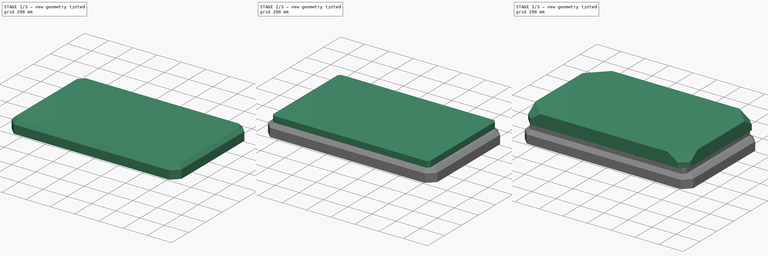
[diagram: build sequence overview — one tinted view per stage of 3, left to right]
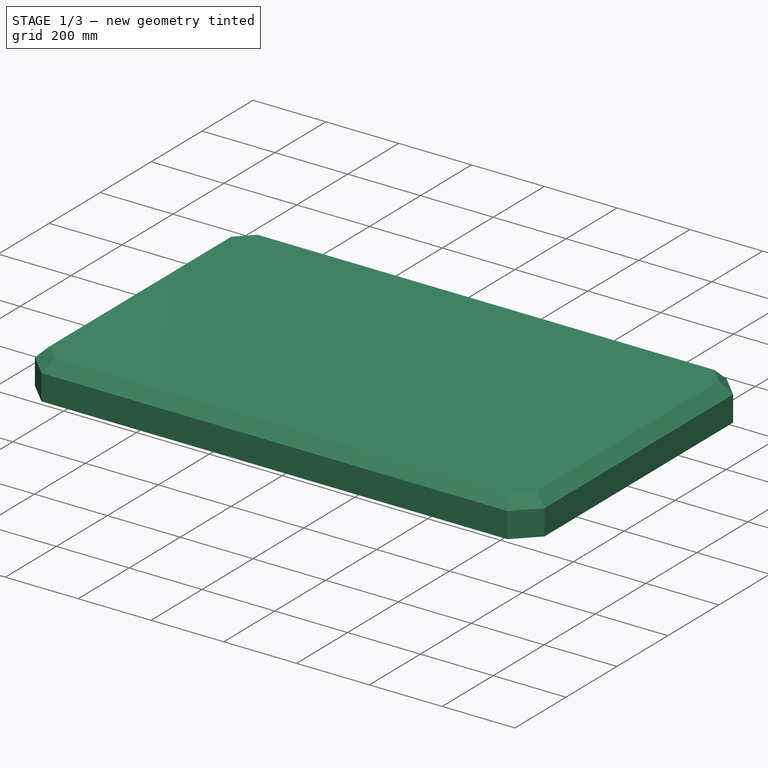
[diagram: stage 1 of 3 — iso view after this stage's code; geometry added in this stage tinted green]
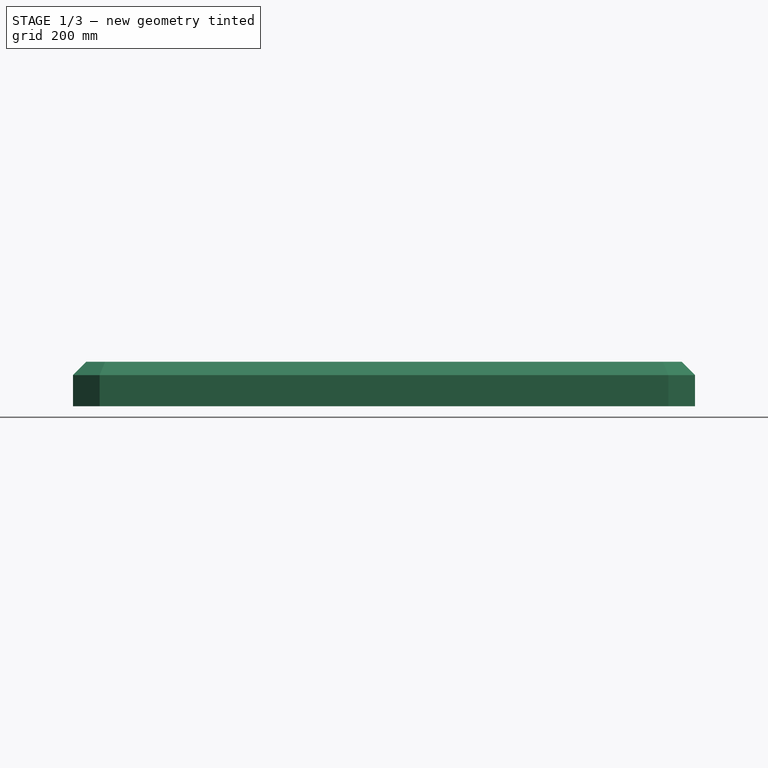
[diagram: stage 1 of 3 — front view after this stage's code; geometry added in this stage tinted green]
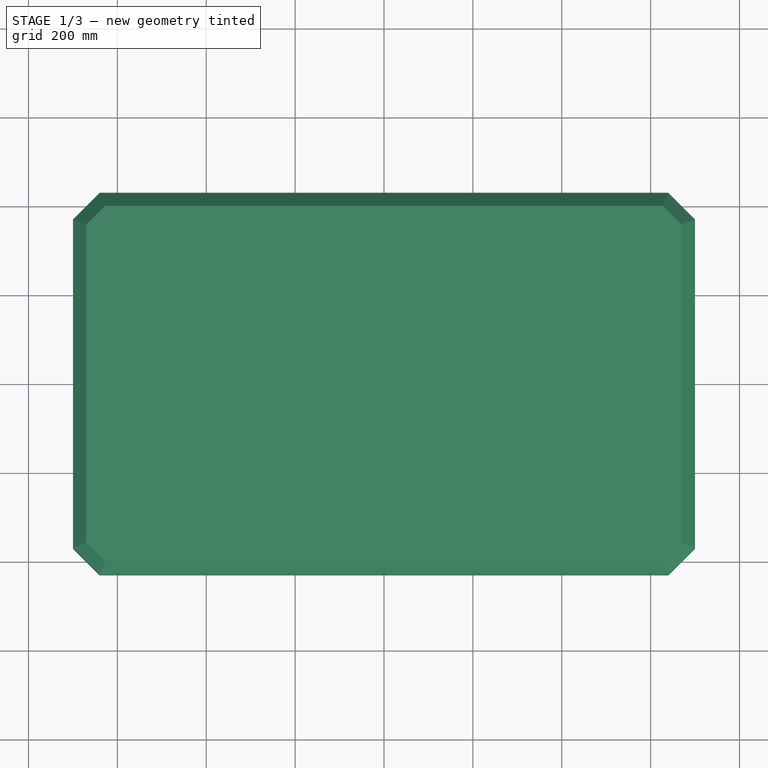
[diagram: stage 1 of 3 — top view after this stage's code; geometry added in this stage tinted green]
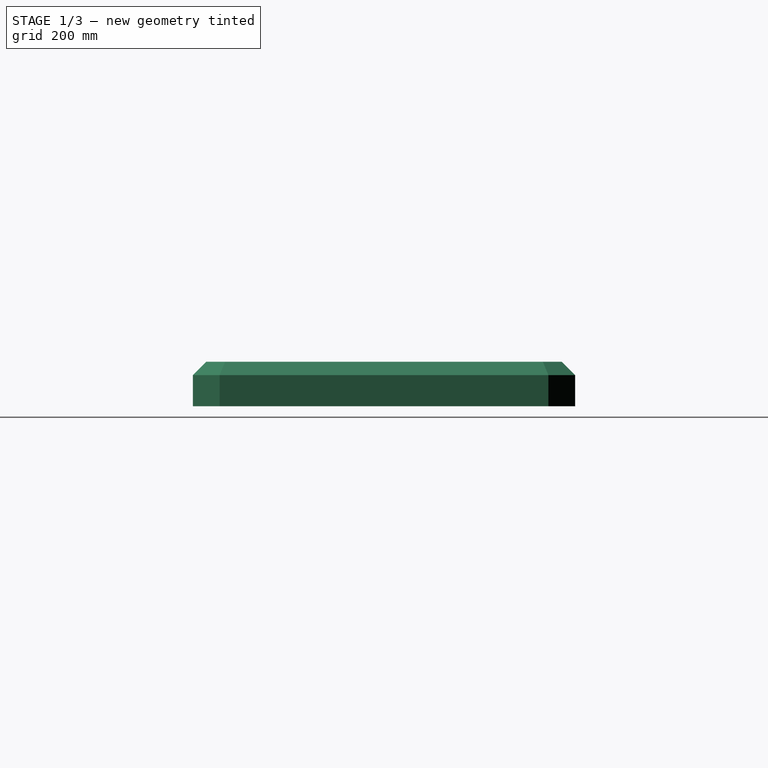
[diagram: stage 1 of 3 — right view after this stage's code; geometry added in this stage tinted green]
FCSTD DOCUMENT  (FreeCAD 0.19R)
Label: AMR_GP400
License: All rights reserved
LicenseURL: http://en.wikipedia.org/wiki/All_rights_reserved
objects: PartDesign::Chamfer×5, Sketcher::SketchObject×3, PartDesign::Pad×3, PartDesign::Body×1
note: 20 computed .brp shape members not serialized (recipe doc carries the construction recipe); baked Part::Feature solids carry a one-line shape summary decoded from their .brp

FEATURE [Sketcher::SketchObject] Sketch
  FullyConstrained = true
  MapMode = 5
  Support = -> [XY_Plane]
  sketch-geometry (4):
    g0: LineSegment StartX=-700 StartY=430 StartZ=0 EndX=700 EndY=430 EndZ=0
    g1: LineSegment StartX=700 StartY=430 StartZ=0 EndX=700 EndY=-430 EndZ=0
    g2: LineSegment StartX=700 StartY=-430 StartZ=0 EndX=-700 EndY=-430 EndZ=0
    g3: LineSegment StartX=-700 StartY=-430 StartZ=0 EndX=-700 EndY=430 EndZ=0
  constraints (11):
    c: Coincident(g0,g1)
    c: Coincident(g1,g2)
    c: Coincident(g2,g3)
    c: Coincident(g3,g0)
    c: Horizontal(g0)
    c: Horizontal(g2)
    c: Vertical(g1)
    c: Vertical(g3)
    c: Symmetric(g0,g1,g-1)
    c: DistanceX(g0,g0) = 1400
    c: DistanceY(g2,g0) = 860
FEATURE [PartDesign::Pad] Pad
  Direction = (1,1,1)
  Length = 100
  Length2 = 100
  Profile = -> Sketch
  Type = 0
FEATURE [PartDesign::Chamfer] Chamfer
  Angle = 45
  Base = -> Pad [Edge1,Edge2,Edge8,Edge5]
  BaseFeature = -> Pad
  ChamferType = 0
  FlipDirection = false
  Size = 60
  Size2 = 1
  SupportTransform = false
FEATURE [PartDesign::Chamfer] Chamfer001
  Angle = 45
  Base = -> Chamfer [Edge16,Edge13,Edge4,Edge18,Edge20,Edge19,Edge17,Edge15]
  BaseFeature = -> Chamfer
  ChamferType = 0
  FlipDirection = false
  Size = 30
  Size2 = 1
  SupportTransform = false
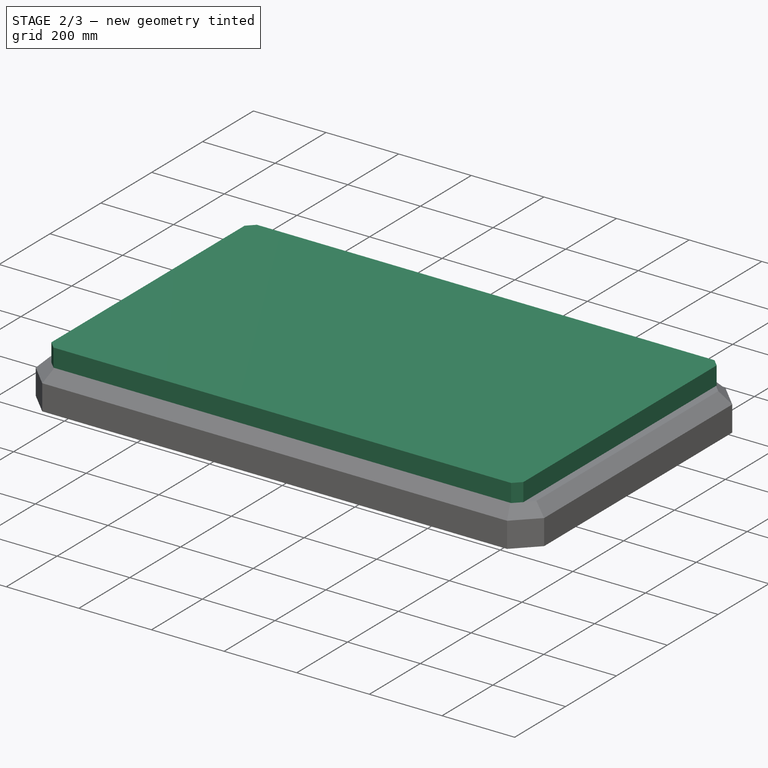
[diagram: stage 2 of 3 — iso view after this stage's code; geometry added in this stage tinted green]
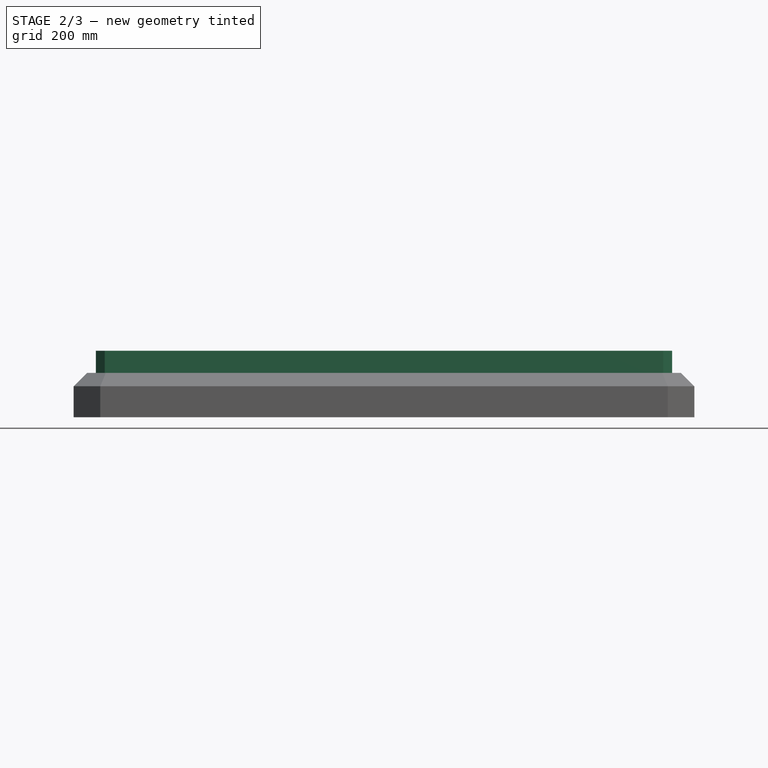
[diagram: stage 2 of 3 — front view after this stage's code; geometry added in this stage tinted green]
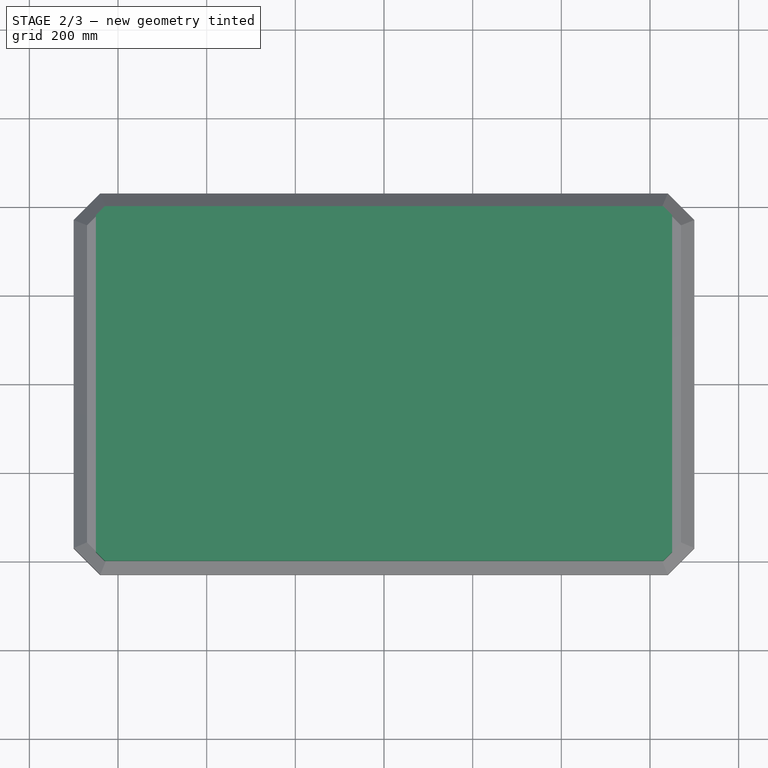
[diagram: stage 2 of 3 — top view after this stage's code; geometry added in this stage tinted green]
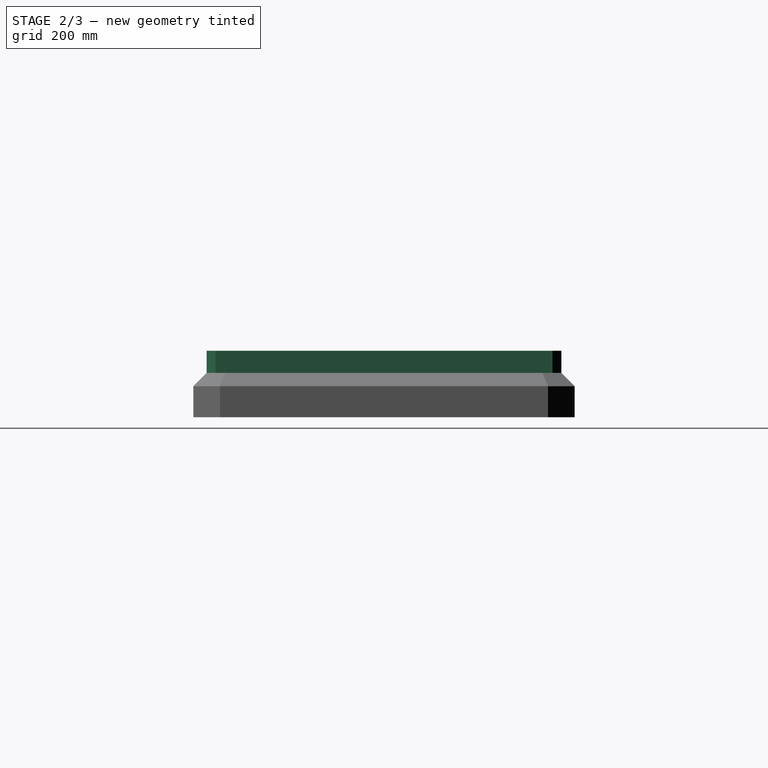
[diagram: stage 2 of 3 — right view after this stage's code; geometry added in this stage tinted green]
FEATURE [Sketcher::SketchObject] Sketch001
  FullyConstrained = true
  MapMode = 5
  Placement = pos=(0,0,100) rot=(0,0,1;0rad)
  Support = -> [Chamfer001]
  sketch-geometry (4):
    g0: LineSegment StartX=-650 StartY=400 StartZ=0 EndX=650 EndY=400 EndZ=0
    g1: LineSegment StartX=650 StartY=400 StartZ=0 EndX=650 EndY=-400 EndZ=0
    g2: LineSegment StartX=650 StartY=-400 StartZ=0 EndX=-650 EndY=-400 EndZ=0
    g3: LineSegment StartX=-650 StartY=-400 StartZ=0 EndX=-650 EndY=400 EndZ=0
  constraints (11):
    c: Coincident(g0,g1)
    c: Coincident(g1,g2)
    c: Coincident(g2,g3)
    c: Coincident(g3,g0)
    c: Horizontal(g0)
    c: Horizontal(g2)
    c: Vertical(g1)
    c: Vertical(g3)
    c: Symmetric(g0,g1,g-1)
    c: DistanceX(g0,g0) = 1300
    c: DistanceY(g2,g0) = 800
FEATURE [PartDesign::Pad] Pad001
  BaseFeature = -> Chamfer001
  Direction = (1,1,1)
  Length = 50
  Length2 = 100
  Profile = -> Sketch001
  Type = 0
FEATURE [PartDesign::Chamfer] Chamfer002
  Angle = 45
  Base = -> Pad001 [Edge25,Edge47,Edge24,Edge44]
  BaseFeature = -> Pad001
  ChamferType = 0
  FlipDirection = false
  Size = 20
  Size2 = 1
  SupportTransform = false
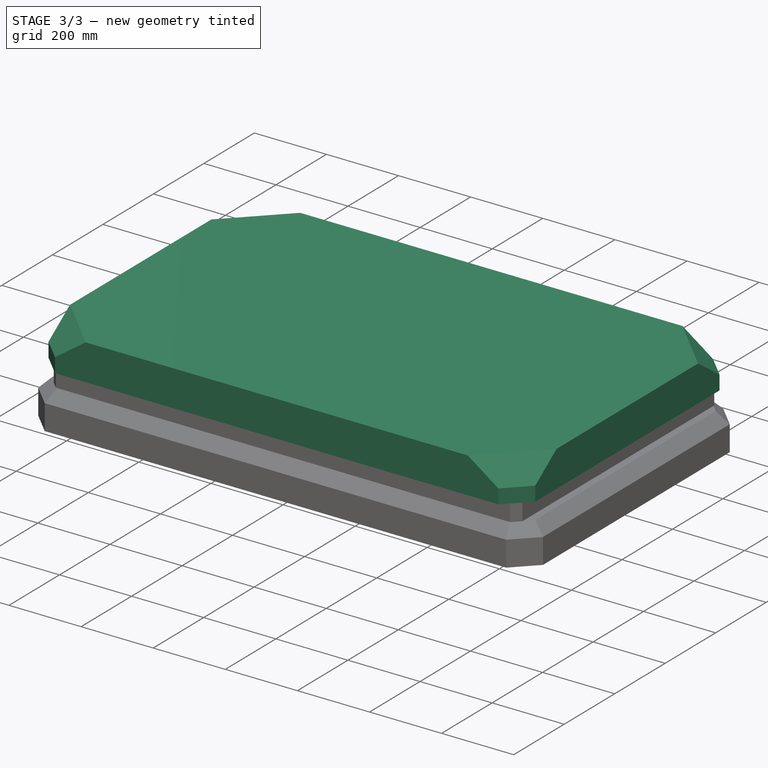
[diagram: stage 3 of 3 — iso view after this stage's code; geometry added in this stage tinted green]
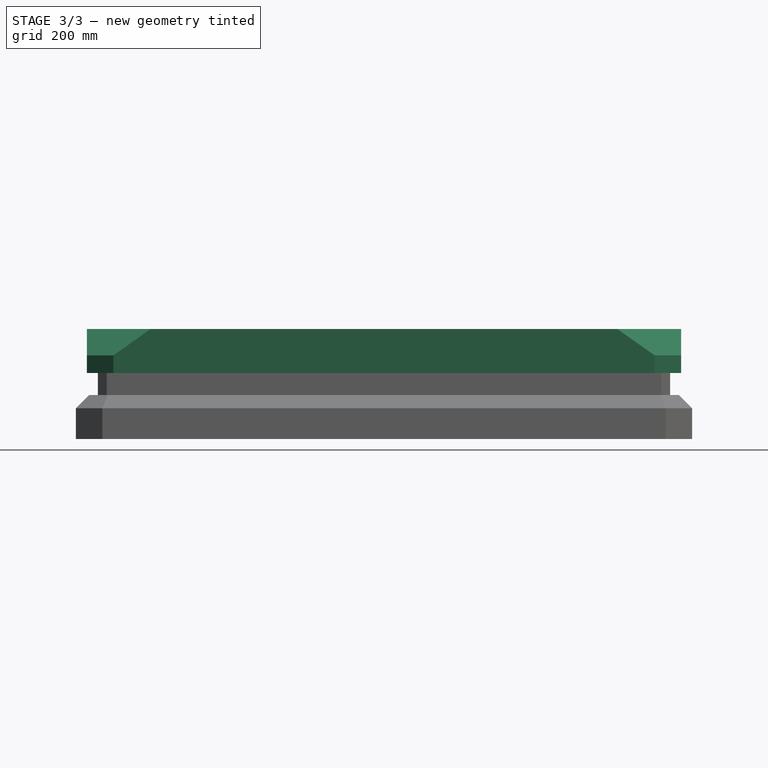
[diagram: stage 3 of 3 — front view after this stage's code; geometry added in this stage tinted green]
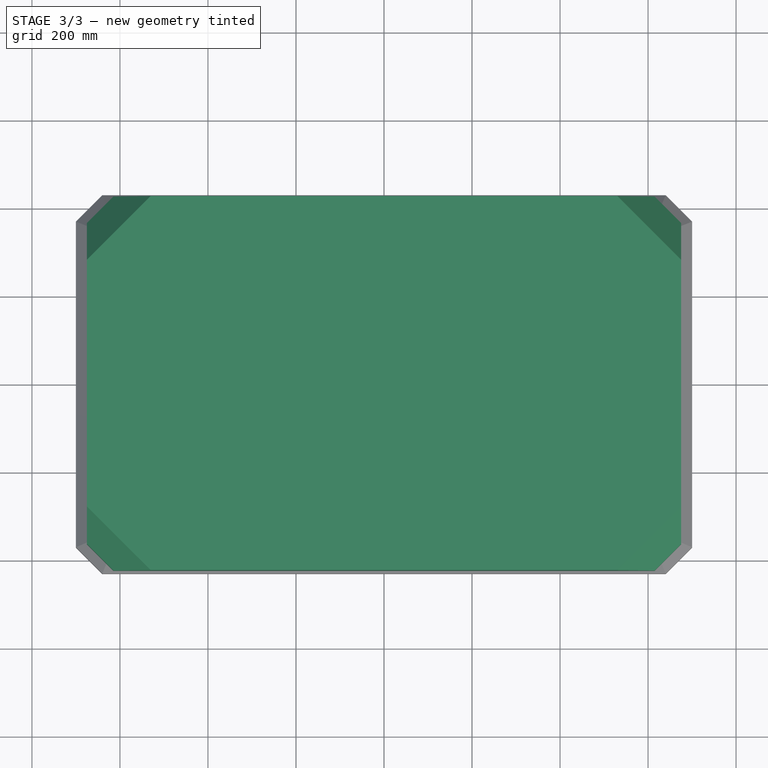
[diagram: stage 3 of 3 — top view after this stage's code; geometry added in this stage tinted green]
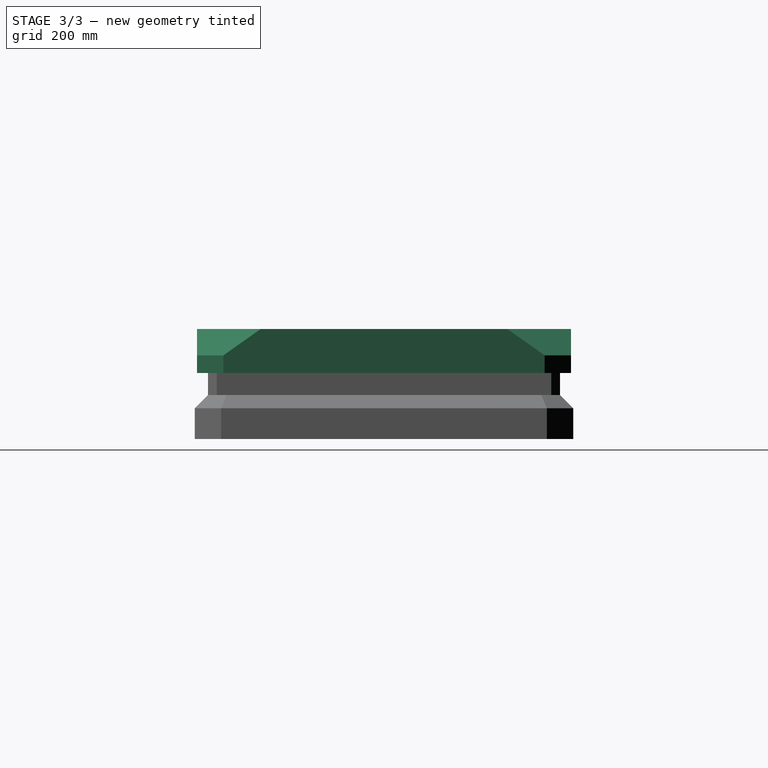
[diagram: stage 3 of 3 — right view after this stage's code; geometry added in this stage tinted green]
FEATURE [Sketcher::SketchObject] Sketch002
  FullyConstrained = true
  MapMode = 5
  Placement = pos=(0,0,150) rot=(0,0,1;0rad)
  Support = -> [Chamfer002]
  sketch-geometry (4):
    g0: LineSegment StartX=-675 StartY=425 StartZ=0 EndX=675 EndY=425 EndZ=0
    g1: LineSegment StartX=675 StartY=425 StartZ=0 EndX=675 EndY=-425 EndZ=0
    g2: LineSegment StartX=675 StartY=-425 StartZ=0 EndX=-675 EndY=-425 EndZ=0
    g3: LineSegment StartX=-675 StartY=-425 StartZ=0 EndX=-675 EndY=425 EndZ=0
  constraints (11):
    c: Coincident(g0,g1)
    c: Coincident(g1,g2)
    c: Coincident(g2,g3)
    c: Coincident(g3,g0)
    c: Horizontal(g0)
    c: Horizontal(g2)
    c: Vertical(g1)
    c: Vertical(g3)
    c: Symmetric(g0,g1,g-1)
    c: DistanceX(g0,g0) = 1350
    c: DistanceY(g2,g0) = 850
FEATURE [PartDesign::Pad] Pad002
  BaseFeature = -> Chamfer002
  Direction = (1,1,1)
  Length = 100
  Length2 = 100
  Profile = -> Sketch002
  Type = 0
FEATURE [PartDesign::Chamfer] Chamfer003
  Angle = 45
  Base = -> Pad002 [Edge2,Edge1,Edge5,Edge8]
  BaseFeature = -> Pad002
  ChamferType = 0
  FlipDirection = false
  Size = 60
  Size2 = 1
  SupportTransform = false
FEATURE [PartDesign::Chamfer] Chamfer004
  Angle = 45
  Base = -> Chamfer003 [Edge23,Edge27,Edge26,Edge21]
  BaseFeature = -> Chamfer003
  ChamferType = 0
  FlipDirection = false
  Size = 60
  Size2 = 1
  SupportTransform = false
FEATURE [PartDesign::Body] Body
  Group = -> [Sketch,Pad,Chamfer,Chamfer001,Sketch001,Pad001,Chamfer002,Sketch002,Pad002,Chamfer003,Chamfer004]
  Origin = -> Origin
  Tip = -> Chamfer004
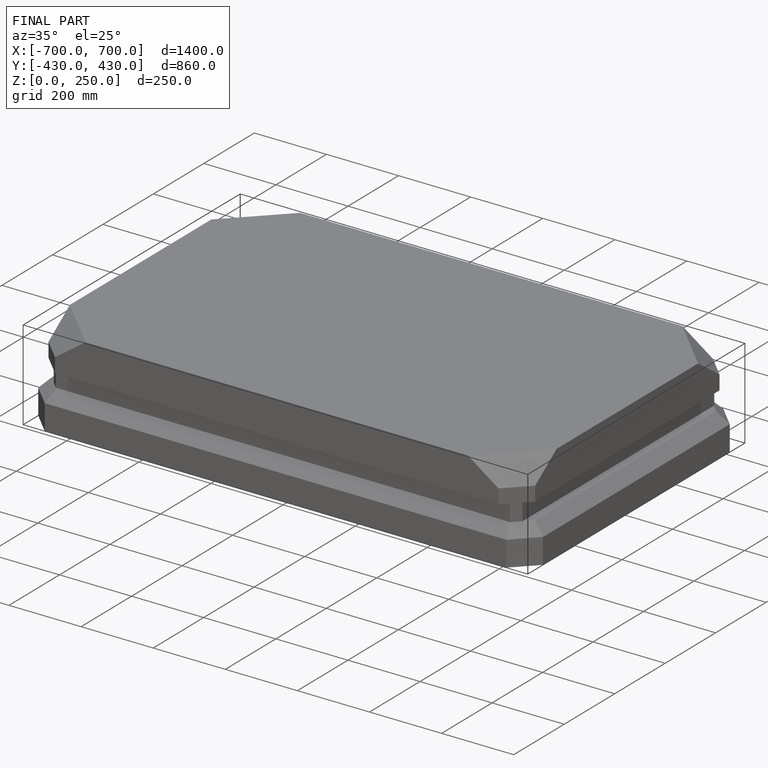
[diagram: finished part — iso view with bounding-box wireframe]
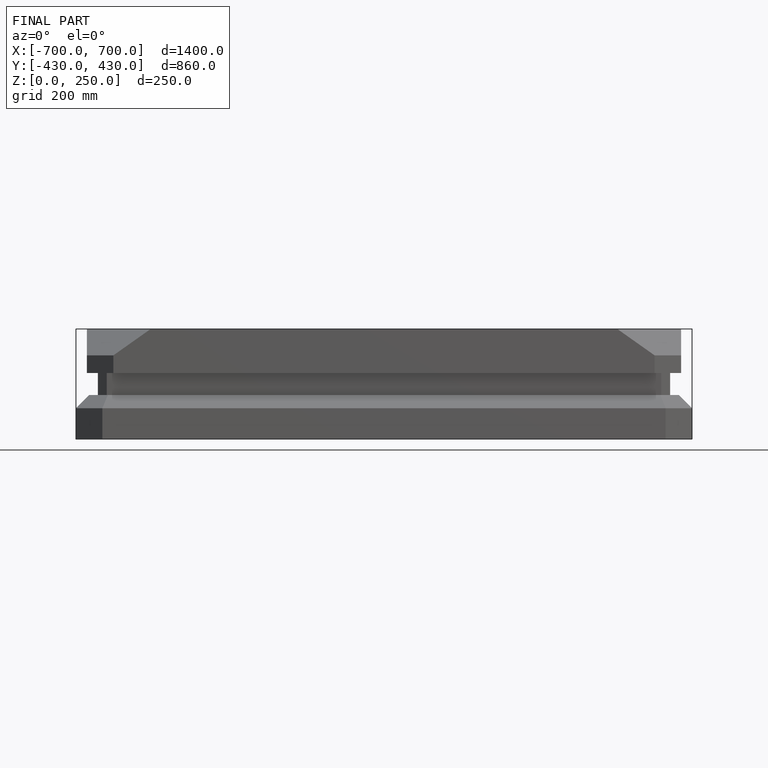
[diagram: finished part — front view with bounding-box wireframe]
